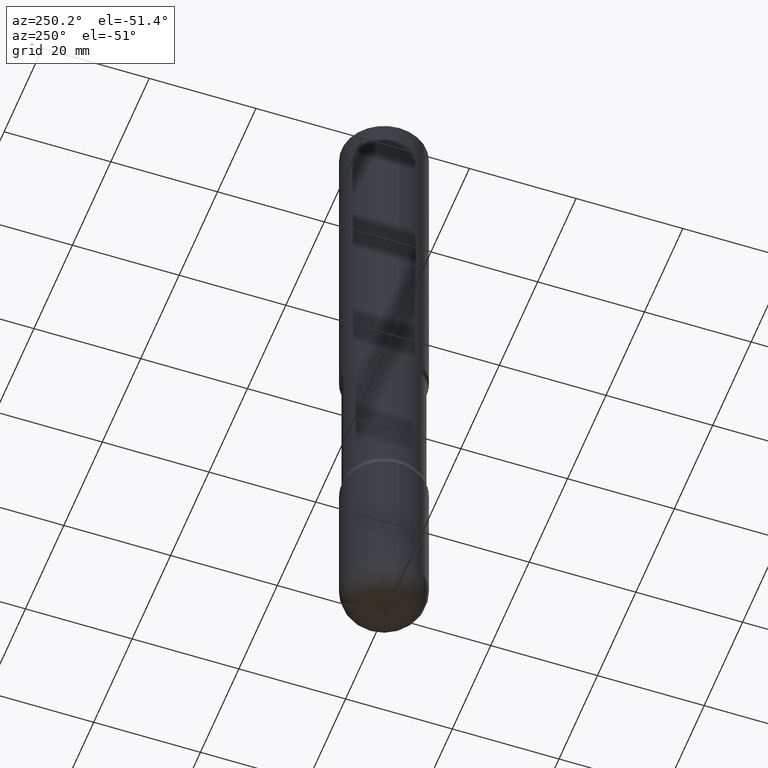
[diagram: clean part render]
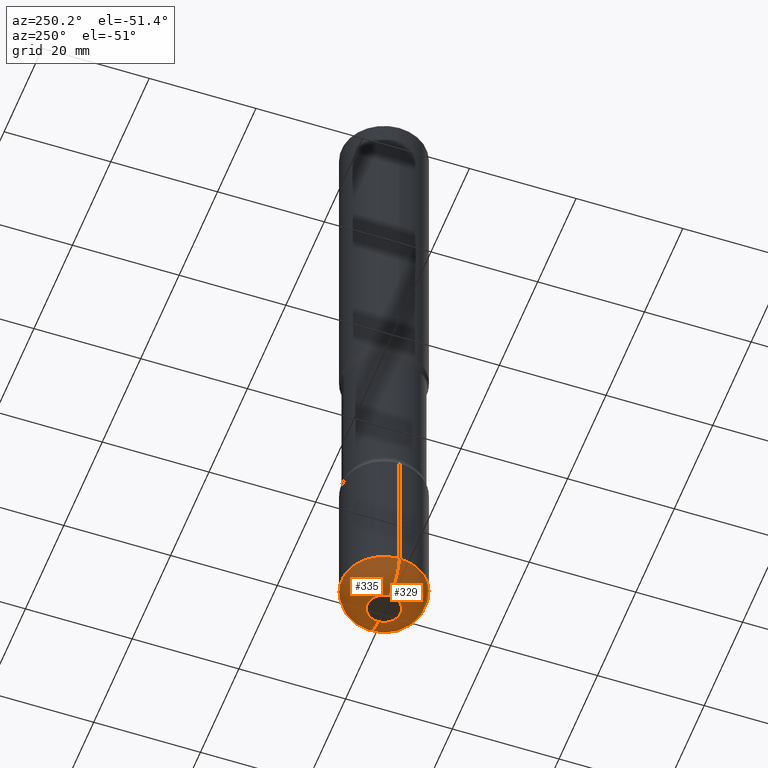
[diagram: same view with one multi-face feature highlighted, each face labeled with its STEP entity id]
A machine part, auxiliary view. The highlighted faces form ONE feature: a constant-radius fillet chain: 2 tangent blend faces with common blend radius 4.826 mm. The faces share edges in the B-rep.
Their STEP definitions:
[1] entity #329 (Torus):
#37 = EDGE_CURVE ( 'NONE', #314, #209, #161, .T. ) ;
#41 = ORIENTED_EDGE ( 'NONE', *, *, #37, .T. ) ;
#73 = CARTESIAN_POINT ( 'NONE',  ( 1.222734403092568523E-28, -1.745740669421572989E-14, -5.000000000000000000 ) ) ;
#84 = VERTEX_POINT ( 'NONE', #537 ) ;
#92 = ORIENTED_EDGE ( 'NONE', *, *, #260, .F. ) ;
#97 = CARTESIAN_POINT ( 'NONE',  ( 0.1225000000000003031, -1.764943816785210001E-14, -4.810000000000000497 ) ) ;
#109 = DIRECTION ( 'NONE',  ( 1.000000000000000000, -6.982962677686266711E-15, 0.000000000000000000 ) ) ;
#124 = AXIS2_PLACEMENT_3D ( 'NONE', #453, #461, #251 ) ;
#125 = EDGE_CURVE ( 'NONE', #132, #314, #444, .T. ) ;
#130 = AXIS2_PLACEMENT_3D ( 'NONE', #97, #412, #109 ) ;
#132 = VERTEX_POINT ( 'NONE', #524 ) ;
#140 = AXIS2_PLACEMENT_3D ( 'NONE', #320, #359, #267 ) ;
#159 = DIRECTION ( 'NONE',  ( -2.445468806185136597E-29, 3.491481338843145583E-15, 1.000000000000000000 ) ) ;
#161 = CIRCLE ( 'NONE', #130, 0.1899999999999998634 ) ;
#209 = VERTEX_POINT ( 'NONE', #528 ) ;
#218 = ORIENTED_EDGE ( 'NONE', *, *, #479, .F. ) ;
#227 = DIRECTION ( 'NONE',  ( 1.000000000000000000, -6.982962677686264344E-15, 0.000000000000000000 ) ) ;
#251 = DIRECTION ( 'NONE',  ( 1.000000000000000000, -6.982962677686265922E-15, 4.883557194083112340E-29 ) ) ;
#255 = CIRCLE ( 'NONE', #407, 0.3125000000000002220 ) ;
#260 = EDGE_CURVE ( 'NONE', #84, #209, #255, .T. ) ;
#267 = DIRECTION ( 'NONE',  ( -1.000000000000000000, 7.105427357601003436E-15, 0.000000000000000000 ) ) ;
#272 = CARTESIAN_POINT ( 'NONE',  ( 1.176270495775050811E-28, -1.679402523983553013E-14, -4.810000000000000497 ) ) ;
#299 = TOROIDAL_SURFACE ( 'NONE', #124, 0.1225000000000003031, 0.1899999999999998912 ) ;
#308 = EDGE_LOOP ( 'NONE', ( #218, #428, #41, #92 ) ) ;
#314 = VERTEX_POINT ( 'NONE', #370 ) ;
#320 = CARTESIAN_POINT ( 'NONE',  ( -0.1225000000000003031, -1.592361038852940387E-14, -4.810000000000000497 ) ) ;
#329 = ADVANCED_FACE ( 'NONE', ( #417 ), #299, .T. ) ;
#359 = DIRECTION ( 'NONE',  ( 7.105427357601001859E-15, 1.000000000000000000, -3.491481338843145583E-15 ) ) ;
#370 = CARTESIAN_POINT ( 'NONE',  ( 0.1225000000000003308, -1.831281962223229977E-14, -5.000000000000000000 ) ) ;
#380 = DIRECTION ( 'NONE',  ( 1.000000000000000000, -6.982962677686262766E-15, 0.000000000000000000 ) ) ;
#407 = AXIS2_PLACEMENT_3D ( 'NONE', #272, #437, #227 ) ;
#412 = DIRECTION ( 'NONE',  ( -6.982962677686266711E-15, -1.000000000000000000, 3.491481338843145583E-15 ) ) ;
#417 = FACE_OUTER_BOUND ( 'NONE', #308, .T. ) ;
#418 = CIRCLE ( 'NONE', #140, 0.1899999999999998634 ) ;
#428 = ORIENTED_EDGE ( 'NONE', *, *, #125, .T. ) ;
#433 = AXIS2_PLACEMENT_3D ( 'NONE', #73, #159, #380 ) ;
#437 = DIRECTION ( 'NONE',  ( -2.445468806185136597E-29, 3.491481338843145583E-15, 1.000000000000000000 ) ) ;
#444 = CIRCLE ( 'NONE', #433, 0.1225000000000003308 ) ;
#453 = CARTESIAN_POINT ( 'NONE',  ( 1.176270495775050811E-28, -1.679402523983553013E-14, -4.810000000000000497 ) ) ;
#461 = DIRECTION ( 'NONE',  ( -2.445468806185136597E-29, 3.491481338843145583E-15, 1.000000000000000000 ) ) ;
#479 = EDGE_CURVE ( 'NONE', #132, #84, #418, .T. ) ;
#524 = CARTESIAN_POINT ( 'NONE',  ( -0.1225000000000003308, -1.558028551674741034E-14, -5.000000000000000000 ) ) ;
#528 = CARTESIAN_POINT ( 'NONE',  ( 0.3125000000000001665, -1.897620107661249005E-14, -4.810000000000000497 ) ) ;
#537 = CARTESIAN_POINT ( 'NONE',  ( -0.3125000000000001665, -1.457357919058521389E-14, -4.810000000000000497 ) ) ;
[2] entity #335 (Torus):
#15 = CARTESIAN_POINT ( 'NONE',  ( 1.176270495775050811E-28, -1.679402523983553013E-14, -4.810000000000000497 ) ) ;
#37 = EDGE_CURVE ( 'NONE', #314, #209, #161, .T. ) ;
#52 = CARTESIAN_POINT ( 'NONE',  ( 1.222734403092568523E-28, -1.745740669421572989E-14, -5.000000000000000000 ) ) ;
#67 = CIRCLE ( 'NONE', #513, 0.3125000000000002220 ) ;
#84 = VERTEX_POINT ( 'NONE', #537 ) ;
#97 = CARTESIAN_POINT ( 'NONE',  ( 0.1225000000000003031, -1.764943816785210001E-14, -4.810000000000000497 ) ) ;
#102 = DIRECTION ( 'NONE',  ( 1.000000000000000000, -6.982962677686264344E-15, 0.000000000000000000 ) ) ;
#106 = ORIENTED_EDGE ( 'NONE', *, *, #421, .T. ) ;
#108 = FACE_OUTER_BOUND ( 'NONE', #470, .T. ) ;
#109 = DIRECTION ( 'NONE',  ( 1.000000000000000000, -6.982962677686266711E-15, 0.000000000000000000 ) ) ;
#130 = AXIS2_PLACEMENT_3D ( 'NONE', #97, #412, #109 ) ;
#132 = VERTEX_POINT ( 'NONE', #524 ) ;
#140 = AXIS2_PLACEMENT_3D ( 'NONE', #320, #359, #267 ) ;
#158 = DIRECTION ( 'NONE',  ( 1.000000000000000000, -6.982962677686265922E-15, 4.883557194083112340E-29 ) ) ;
#161 = CIRCLE ( 'NONE', #130, 0.1899999999999998634 ) ;
#188 = DIRECTION ( 'NONE',  ( -2.445468806185136597E-29, 3.491481338843145583E-15, 1.000000000000000000 ) ) ;
#205 = DIRECTION ( 'NONE',  ( -2.445468806185136597E-29, 3.491481338843145583E-15, 1.000000000000000000 ) ) ;
#209 = VERTEX_POINT ( 'NONE', #528 ) ;
#245 = AXIS2_PLACEMENT_3D ( 'NONE', #247, #205, #158 ) ;
#247 = CARTESIAN_POINT ( 'NONE',  ( 1.176270495775050811E-28, -1.679402523983553013E-14, -4.810000000000000497 ) ) ;
#267 = DIRECTION ( 'NONE',  ( -1.000000000000000000, 7.105427357601003436E-15, 0.000000000000000000 ) ) ;
#305 = ORIENTED_EDGE ( 'NONE', *, *, #479, .T. ) ;
#312 = AXIS2_PLACEMENT_3D ( 'NONE', #52, #481, #492 ) ;
#314 = VERTEX_POINT ( 'NONE', #370 ) ;
#320 = CARTESIAN_POINT ( 'NONE',  ( -0.1225000000000003031, -1.592361038852940387E-14, -4.810000000000000497 ) ) ;
#335 = ADVANCED_FACE ( 'NONE', ( #108 ), #482, .T. ) ;
#359 = DIRECTION ( 'NONE',  ( 7.105427357601001859E-15, 1.000000000000000000, -3.491481338843145583E-15 ) ) ;
#370 = CARTESIAN_POINT ( 'NONE',  ( 0.1225000000000003308, -1.831281962223229977E-14, -5.000000000000000000 ) ) ;
#389 = ORIENTED_EDGE ( 'NONE', *, *, #427, .F. ) ;
#412 = DIRECTION ( 'NONE',  ( -6.982962677686266711E-15, -1.000000000000000000, 3.491481338843145583E-15 ) ) ;
#418 = CIRCLE ( 'NONE', #140, 0.1899999999999998634 ) ;
#421 = EDGE_CURVE ( 'NONE', #314, #132, #554, .T. ) ;
#427 = EDGE_CURVE ( 'NONE', #209, #84, #67, .T. ) ;
#470 = EDGE_LOOP ( 'NONE', ( #106, #305, #389, #549 ) ) ;
#479 = EDGE_CURVE ( 'NONE', #132, #84, #418, .T. ) ;
#481 = DIRECTION ( 'NONE',  ( -2.445468806185136597E-29, 3.491481338843145583E-15, 1.000000000000000000 ) ) ;
#482 = TOROIDAL_SURFACE ( 'NONE', #245, 0.1225000000000003031, 0.1899999999999998912 ) ;
#492 = DIRECTION ( 'NONE',  ( 1.000000000000000000, -6.982962677686262766E-15, 0.000000000000000000 ) ) ;
#513 = AXIS2_PLACEMENT_3D ( 'NONE', #15, #188, #102 ) ;
#524 = CARTESIAN_POINT ( 'NONE',  ( -0.1225000000000003308, -1.558028551674741034E-14, -5.000000000000000000 ) ) ;
#528 = CARTESIAN_POINT ( 'NONE',  ( 0.3125000000000001665, -1.897620107661249005E-14, -4.810000000000000497 ) ) ;
#537 = CARTESIAN_POINT ( 'NONE',  ( -0.3125000000000001665, -1.457357919058521389E-14, -4.810000000000000497 ) ) ;
#549 = ORIENTED_EDGE ( 'NONE', *, *, #37, .F. ) ;
#554 = CIRCLE ( 'NONE', #312, 0.1225000000000003308 ) ;